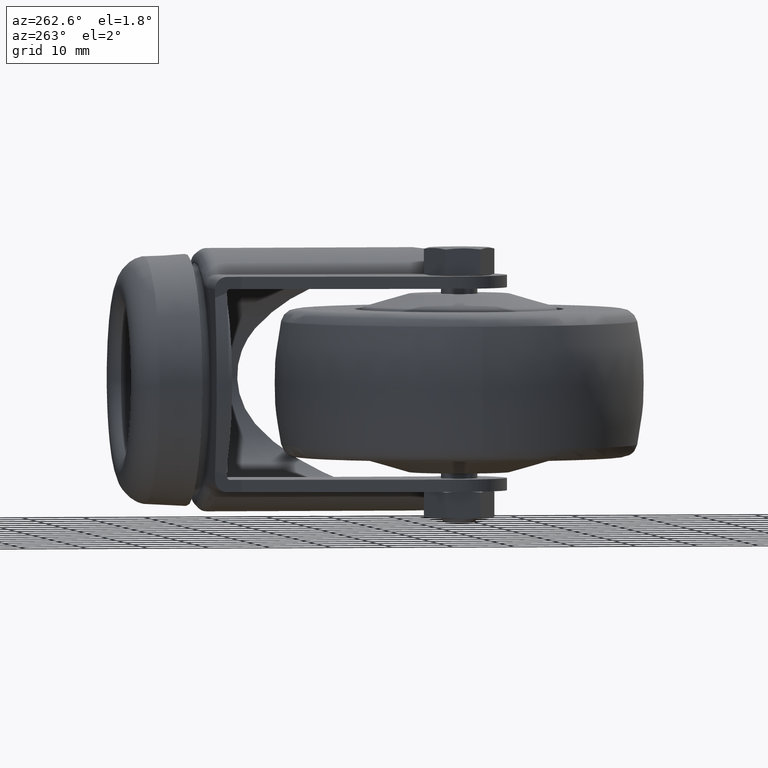
[diagram: clean part render]
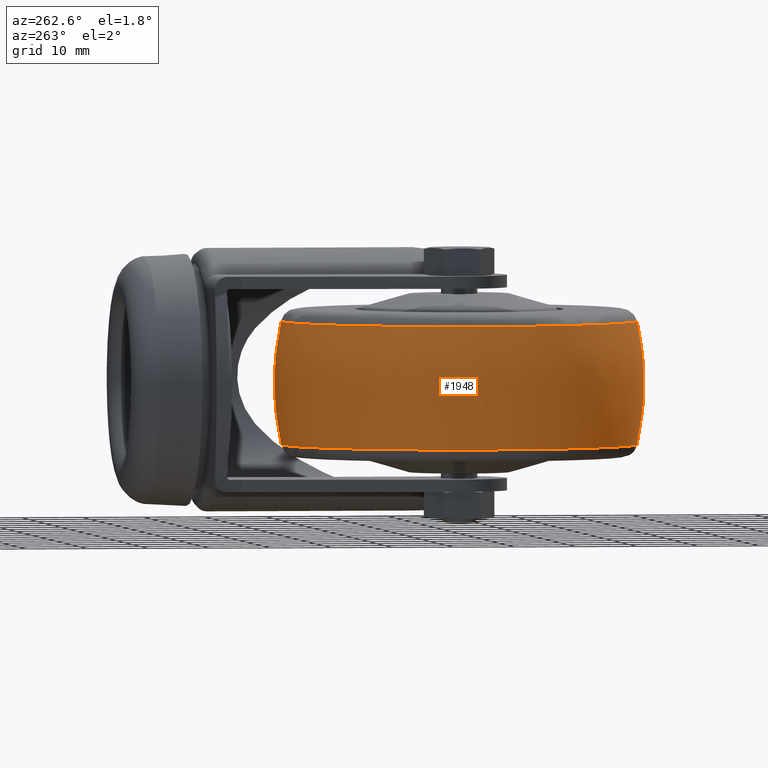
[diagram: same view with one face highlighted and labeled with its STEP entity id]
A machine part, auxiliary view. The second image highlights one B-rep face of the part: STEP entity #1948.
In plain terms, the highlighted face is a freeform B-spline surface patch.
Its self-contained STEP definition (entity closure, byte-faithful):
#192=(
BOUNDED_CURVE()
B_SPLINE_CURVE(2,(#3088,#3089,#3090),.UNSPECIFIED.,.F.,.F.)
B_SPLINE_CURVE_WITH_KNOTS((3,3),(-0.209753877460469,0.20975387746047),
 .UNSPECIFIED.)
CURVE()
GEOMETRIC_REPRESENTATION_ITEM()
RATIONAL_B_SPLINE_CURVE((1.,0.978082191780829,1.))
REPRESENTATION_ITEM('')
);
#241=(
BOUNDED_SURFACE()
B_SPLINE_SURFACE(2,2,((#3060,#3061,#3062,#3063,#3064,#3065,#3066,#3067,
#3068),(#3069,#3070,#3071,#3072,#3073,#3074,#3075,#3076,#3077),(#3078,#3079,
#3080,#3081,#3082,#3083,#3084,#3085,#3086)),.UNSPECIFIED.,.F.,.T.,.F.)
B_SPLINE_SURFACE_WITH_KNOTS((3,3),(3,2,2,2,3),(-0.20975387746047,0.209753877460469),
(-3.14159265358979,-1.5707963267949,0.,1.5707963267949,3.14159265358979),
 .UNSPECIFIED.)
GEOMETRIC_REPRESENTATION_ITEM()
RATIONAL_B_SPLINE_SURFACE(((1.,0.707106781186548,1.,0.707106781186548,1.,
0.707106781186548,1.,0.707106781186548,1.),(0.978082191780829,0.691608550366025,
0.978082191780829,0.691608550366025,0.978082191780829,0.691608550366025,
0.978082191780829,0.691608550366025,0.978082191780829),(1.,0.707106781186548,
1.,0.707106781186548,1.,0.707106781186548,1.,0.707106781186548,1.)))
REPRESENTATION_ITEM('')
SURFACE()
);
#453=FACE_OUTER_BOUND('',#616,.T.);
#616=EDGE_LOOP('',(#1398,#1399,#1400,#1401,#1402,#1403));
#825=CIRCLE('',#2118,28.9452054794521);
#826=CIRCLE('',#2119,28.9452054794521);
#827=CIRCLE('',#2120,28.9452054794521);
#828=CIRCLE('',#2121,28.9452054794521);
#944=VERTEX_POINT('',#3056);
#945=VERTEX_POINT('',#3057);
#946=VERTEX_POINT('',#3087);
#947=VERTEX_POINT('',#3091);
#1129=EDGE_CURVE('',#944,#945,#825,.T.);
#1130=EDGE_CURVE('',#945,#944,#826,.T.);
#1131=EDGE_CURVE('',#945,#946,#192,.T.);
#1132=EDGE_CURVE('',#946,#947,#827,.T.);
#1133=EDGE_CURVE('',#947,#946,#828,.T.);
#1398=ORIENTED_EDGE('',*,*,#1129,.F.);
#1399=ORIENTED_EDGE('',*,*,#1130,.F.);
#1400=ORIENTED_EDGE('',*,*,#1131,.T.);
#1401=ORIENTED_EDGE('',*,*,#1132,.T.);
#1402=ORIENTED_EDGE('',*,*,#1133,.T.);
#1403=ORIENTED_EDGE('',*,*,#1131,.F.);
#1948=ADVANCED_FACE('',(#453),#241,.F.);
#2118=AXIS2_PLACEMENT_3D('',#3058,#2445,#2446);
#2119=AXIS2_PLACEMENT_3D('',#3059,#2447,#2448);
#2120=AXIS2_PLACEMENT_3D('',#3092,#2449,#2450);
#2121=AXIS2_PLACEMENT_3D('',#3093,#2451,#2452);
#2445=DIRECTION('center_axis',(1.,0.,0.));
#2446=DIRECTION('ref_axis',(0.,0.,-1.));
#2447=DIRECTION('center_axis',(1.,0.,0.));
#2448=DIRECTION('ref_axis',(0.,0.,-1.));
#2449=DIRECTION('center_axis',(1.,0.,0.));
#2450=DIRECTION('ref_axis',(0.,0.,-1.));
#2451=DIRECTION('center_axis',(1.,0.,0.));
#2452=DIRECTION('ref_axis',(0.,0.,-1.));
#3056=CARTESIAN_POINT('',(24.0205479452055,0.,-28.9452054794521));
#3057=CARTESIAN_POINT('',(24.0205479452055,1.50380046916128E-14,28.945205479452));
#3058=CARTESIAN_POINT('Origin',(24.0205479452055,0.,0.));
#3059=CARTESIAN_POINT('Origin',(24.0205479452055,0.,0.));
#3060=CARTESIAN_POINT('Ctrl Pts',(3.97945205479438,-1.3233892276597E-14,
28.9452054794519));
#3061=CARTESIAN_POINT('Ctrl Pts',(3.97945205479442,-28.945205479452,28.9452054794519));
#3062=CARTESIAN_POINT('Ctrl Pts',(3.97945205479448,-28.945205479452,-8.91556321072974E-14));
#3063=CARTESIAN_POINT('Ctrl Pts',(3.97945205479453,-28.945205479452,-28.9452054794521));
#3064=CARTESIAN_POINT('Ctrl Pts',(3.97945205479449,-1.3233892276597E-14,
-28.9452054794521));
#3065=CARTESIAN_POINT('Ctrl Pts',(3.97945205479445,28.945205479452,-28.9452054794521));
#3066=CARTESIAN_POINT('Ctrl Pts',(3.97945205479439,28.945205479452,-8.91556321072975E-14));
#3067=CARTESIAN_POINT('Ctrl Pts',(3.97945205479434,28.945205479452,28.9452054794519));
#3068=CARTESIAN_POINT('Ctrl Pts',(3.97945205479438,-1.3233892276597E-14,
28.9452054794519));
#3069=CARTESIAN_POINT('Ctrl Pts',(13.9999999999999,9.02056207507891E-16,
31.0784313725489));
#3070=CARTESIAN_POINT('Ctrl Pts',(14.,-31.078431372549,31.0784313725489));
#3071=CARTESIAN_POINT('Ctrl Pts',(14.,-31.078431372549,-6.99440505513848E-14));
#3072=CARTESIAN_POINT('Ctrl Pts',(14.0000000000001,-31.078431372549,-31.0784313725491));
#3073=CARTESIAN_POINT('Ctrl Pts',(14.0000000000001,9.02056207507889E-16,
-31.0784313725491));
#3074=CARTESIAN_POINT('Ctrl Pts',(14.,31.078431372549,-31.0784313725491));
#3075=CARTESIAN_POINT('Ctrl Pts',(13.9999999999999,31.078431372549,-6.9944050551385E-14));
#3076=CARTESIAN_POINT('Ctrl Pts',(13.9999999999999,31.078431372549,31.0784313725489));
#3077=CARTESIAN_POINT('Ctrl Pts',(13.9999999999999,9.02056207507891E-16,
31.0784313725489));
#3078=CARTESIAN_POINT('Ctrl Pts',(24.0205479452055,1.50380046916128E-14,
28.945205479452));
#3079=CARTESIAN_POINT('Ctrl Pts',(24.0205479452055,-28.945205479452,28.945205479452));
#3080=CARTESIAN_POINT('Ctrl Pts',(24.0205479452056,-28.945205479452,-5.07324689954723E-14));
#3081=CARTESIAN_POINT('Ctrl Pts',(24.0205479452056,-28.945205479452,-28.9452054794521));
#3082=CARTESIAN_POINT('Ctrl Pts',(24.0205479452056,1.50380046916128E-14,
-28.9452054794521));
#3083=CARTESIAN_POINT('Ctrl Pts',(24.0205479452056,28.945205479452,-28.9452054794521));
#3084=CARTESIAN_POINT('Ctrl Pts',(24.0205479452055,28.945205479452,-5.07324689954725E-14));
#3085=CARTESIAN_POINT('Ctrl Pts',(24.0205479452055,28.945205479452,28.945205479452));
#3086=CARTESIAN_POINT('Ctrl Pts',(24.0205479452055,1.50380046916128E-14,
28.945205479452));
#3087=CARTESIAN_POINT('',(3.97945205479438,-1.3233892276597E-14,28.9452054794519));
#3088=CARTESIAN_POINT('Ctrl Pts',(24.0205479452055,1.50380046916128E-14,
28.945205479452));
#3089=CARTESIAN_POINT('Ctrl Pts',(13.9999999999999,9.02056207507888E-16,
31.0784313725489));
#3090=CARTESIAN_POINT('Ctrl Pts',(3.97945205479438,-1.3233892276597E-14,
28.9452054794519));
#3091=CARTESIAN_POINT('',(3.97945205479451,0.,-28.9452054794521));
#3092=CARTESIAN_POINT('Origin',(3.97945205479451,0.,0.));
#3093=CARTESIAN_POINT('Origin',(3.97945205479451,0.,0.));